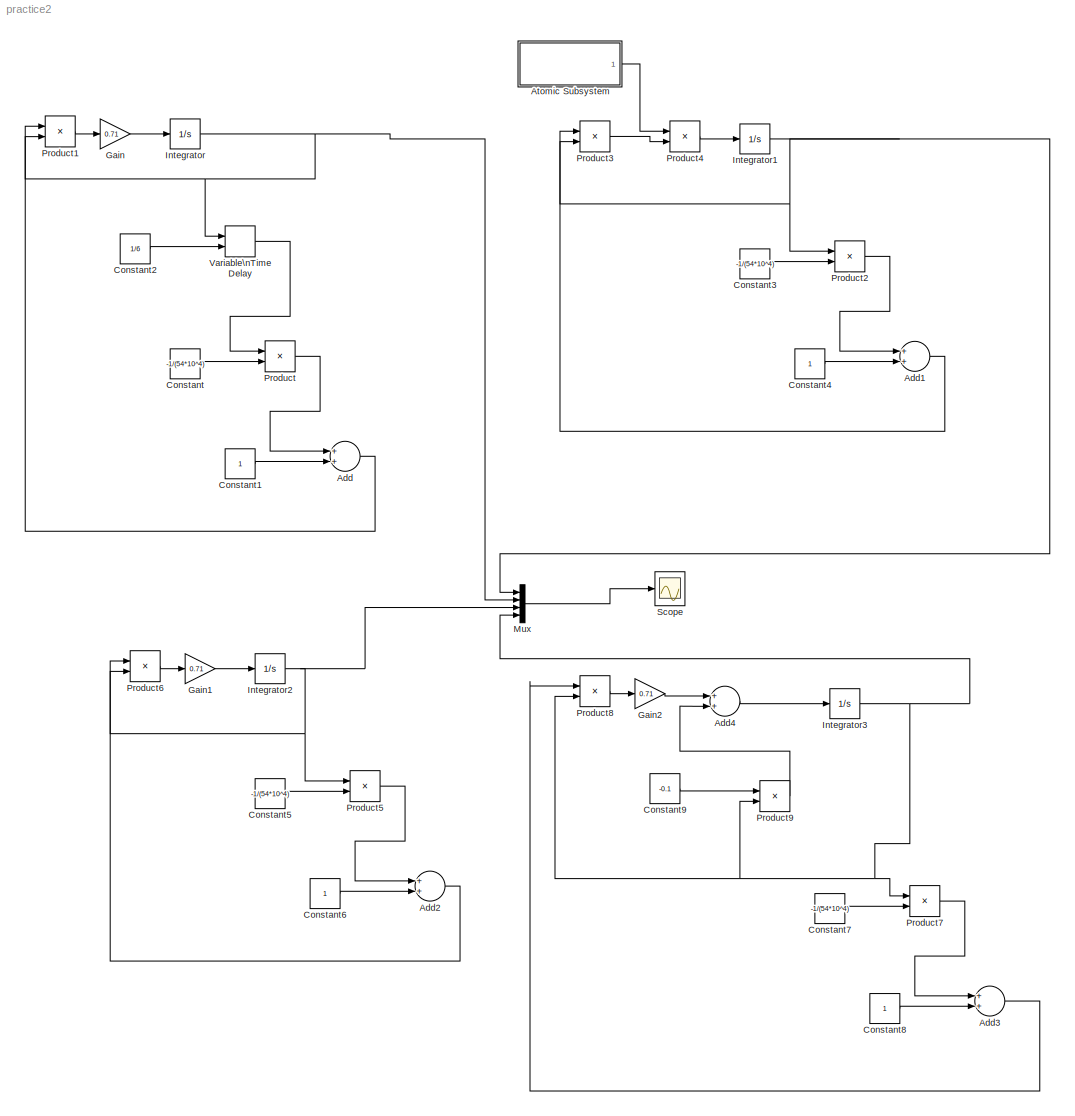
MODEL practice2
KIND model
BLOCK [Sum] Add
  InputSameDT = off
  OutDataTypeStr = Inherit: Inherit via internal rule
  Ports = [2, 1]
  SID = 1
  SaturateOnIntegerOverflow = off
BLOCK [Sum] Add1
  InputSameDT = off
  OutDataTypeStr = Inherit: Inherit via internal rule
  Ports = [2, 1]
  SID = 33
  SaturateOnIntegerOverflow = off
BLOCK [Sum] Add2
  InputSameDT = off
  OutDataTypeStr = Inherit: Inherit via internal rule
  Ports = [2, 1]
  SID = 51
  SaturateOnIntegerOverflow = off
BLOCK [Sum] Add3
  InputSameDT = off
  OutDataTypeStr = Inherit: Inherit via internal rule
  Ports = [2, 1]
  SID = 52
  SaturateOnIntegerOverflow = off
BLOCK [Sum] Add4
  InputSameDT = off
  OutDataTypeStr = Inherit: Inherit via internal rule
  Ports = [2, 1]
  SID = 53
  SaturateOnIntegerOverflow = off
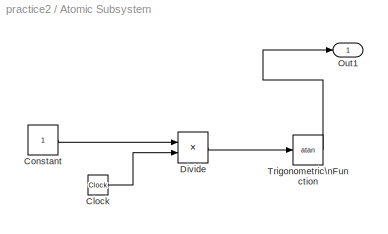
BLOCK [SubSystem] Atomic Subsystem
  FunctionWithSeparateData = off
  MaskHideContents = off
  MinAlgLoopOccurrences = off
  Opaque = off
  Ports = [0, 1]
  PropExecContextOutsideSubsystem = off
  RTWSystemCode = Auto
  RequestExecContextInheritance = off
  SID = 41
  TreatAsAtomicUnit = on
BLOCK [Clock] Atomic Subsystem/Clock
  SID = 44
BLOCK [Constant] Atomic Subsystem/Constant
  SID = 46
BLOCK [Product] Atomic Subsystem/Divide
  InputSameDT = off
  Inputs = */
  OutDataTypeStr = Inherit: Inherit via internal rule
  Ports = [2, 1]
  RndMeth = Floor
  SID = 45
  SaturateOnIntegerOverflow = off
BLOCK [Outport] Atomic Subsystem/Out1
  IconDisplay = Port number
  SID = 43
BLOCK [Trigonometry] Atomic Subsystem/Trigonometric\nFunction
  Operator = atan
  Ports = [1, 1]
  SID = 47
BLOCK [Constant] Constant
  SID = 2
  Value = -1/(54*10^4)
BLOCK [Constant] Constant1
  SID = 3
BLOCK [Constant] Constant2
  SID = 11
  Value = 1/6
BLOCK [Constant] Constant3
  SID = 34
  Value = -1/(54*10^4)
BLOCK [Constant] Constant4
  SID = 35
BLOCK [Constant] Constant5
  SID = 54
  Value = -1/(54*10^4)
BLOCK [Constant] Constant6
  SID = 55
BLOCK [Constant] Constant7
  SID = 56
  Value = -1/(54*10^4)
BLOCK [Constant] Constant8
  SID = 57
BLOCK [Constant] Constant9
  SID = 58
  Value = -0.1
BLOCK [Gain] Gain
  Gain = 0.71
  OutDataTypeStr = Inherit: Inherit via internal rule
  ParamDataTypeStr = Inherit: Inherit via internal rule
  SID = 4
  SaturateOnIntegerOverflow = off
BLOCK [Gain] Gain1
  Gain = 0.71
  OutDataTypeStr = Inherit: Inherit via internal rule
  ParamDataTypeStr = Inherit: Inherit via internal rule
  SID = 59
  SaturateOnIntegerOverflow = off
BLOCK [Gain] Gain2
  Gain = 0.71
  OutDataTypeStr = Inherit: Inherit via internal rule
  ParamDataTypeStr = Inherit: Inherit via internal rule
  SID = 60
  SaturateOnIntegerOverflow = off
BLOCK [Integrator] Integrator
  InitialCondition = (1/4)*54*10^4
  Ports = [1, 1]
  SID = 5
BLOCK [Integrator] Integrator1
  InitialCondition = (1/4)*54*10^4
  Ports = [1, 1]
  SID = 37
BLOCK [Integrator] Integrator2
  InitialCondition = (1/4)*54*10^4
  Ports = [1, 1]
  SID = 61
BLOCK [Integrator] Integrator3
  InitialCondition = (1/4)*54*10^4
  Ports = [1, 1]
  SID = 62
BLOCK [Mux] Mux
  DisplayOption = bar
  Ports = [4, 1]
  SID = 49
BLOCK [Product] Product
  InputSameDT = off
  OutDataTypeStr = Inherit: Inherit via internal rule
  Ports = [2, 1]
  SID = 6
  SaturateOnIntegerOverflow = off
BLOCK [Product] Product1
  InputSameDT = off
  OutDataTypeStr = Inherit: Inherit via internal rule
  Ports = [2, 1]
  SID = 7
  SaturateOnIntegerOverflow = off
BLOCK [Product] Product2
  InputSameDT = off
  OutDataTypeStr = Inherit: Inherit via internal rule
  Ports = [2, 1]
  SID = 38
  SaturateOnIntegerOverflow = off
BLOCK [Product] Product3
  InputSameDT = off
  OutDataTypeStr = Inherit: Inherit via internal rule
  Ports = [2, 1]
  SID = 39
  SaturateOnIntegerOverflow = off
BLOCK [Product] Product4
  InputSameDT = off
  OutDataTypeStr = Inherit: Inherit via internal rule
  Ports = [2, 1]
  SID = 48
  SaturateOnIntegerOverflow = off
BLOCK [Product] Product5
  InputSameDT = off
  OutDataTypeStr = Inherit: Inherit via internal rule
  Ports = [2, 1]
  SID = 63
  SaturateOnIntegerOverflow = off
BLOCK [Product] Product6
  InputSameDT = off
  OutDataTypeStr = Inherit: Inherit via internal rule
  Ports = [2, 1]
  SID = 64
  SaturateOnIntegerOverflow = off
BLOCK [Product] Product7
  InputSameDT = off
  OutDataTypeStr = Inherit: Inherit via internal rule
  Ports = [2, 1]
  SID = 65
  SaturateOnIntegerOverflow = off
BLOCK [Product] Product8
  InputSameDT = off
  OutDataTypeStr = Inherit: Inherit via internal rule
  Ports = [2, 1]
  SID = 66
  SaturateOnIntegerOverflow = off
BLOCK [Product] Product9
  InputSameDT = off
  OutDataTypeStr = Inherit: Inherit via internal rule
  Ports = [2, 1]
  SID = 67
  SaturateOnIntegerOverflow = off
BLOCK [Scope] Scope
  DataFormat = StructureWithTime
  Floating = off
  NumInputPorts = 1
  Ports = [1]
  SID = 8
  SampleTime = 0
  SaveToWorkspace = on
  ShowLegends = off
  ZoomMode = yonly
BLOCK [VariableTransportDelay] Variable\nTime Delay
  MaximumDelay = 10
  Ports = [2, 1]
  SID = 10
LINE Add1:1 -> Product3:1
LINE Add2:1 -> Product6:1
LINE Add3:1 -> Product8:1
LINE Add4:1 -> Integrator3:1
LINE Add:1 -> Product1:1
LINE Atomic Subsystem/Clock:1 -> Atomic Subsystem/Divide:2
LINE Atomic Subsystem/Constant:1 -> Atomic Subsystem/Divide:1
LINE Atomic Subsystem/Divide:1 -> Atomic Subsystem/Trigonometric\nFunction:1
LINE Atomic Subsystem/Trigonometric\nFunction:1 -> Atomic Subsystem/Out1:1
LINE Atomic Subsystem:1 -> Product4:1
LINE Constant1:1 -> Add:2
LINE Constant2:1 -> Variable\nTime Delay:2
LINE Constant3:1 -> Product2:2
LINE Constant4:1 -> Add1:2
LINE Constant5:1 -> Product5:2
LINE Constant6:1 -> Add2:2
LINE Constant7:1 -> Product7:2
LINE Constant8:1 -> Add3:2
LINE Constant9:1 -> Product9:1
LINE Constant:1 -> Product:2
LINE Gain1:1 -> Integrator2:1
LINE Gain2:1 -> Add4:1
LINE Gain:1 -> Integrator:1
NET Integrator1:1 -> Mux:1, Product2:1, Product3:2
NET Integrator2:1 -> Mux:3, Product5:1, Product6:2
NET Integrator3:1 -> Mux:4, Product7:1, Product8:2, Product9:2
NET Integrator:1 -> Mux:2, Product1:2, Variable\nTime Delay:1
LINE Mux:1 -> Scope:1
LINE Product1:1 -> Gain:1
LINE Product2:1 -> Add1:1
LINE Product3:1 -> Product4:2
LINE Product4:1 -> Integrator1:1
LINE Product5:1 -> Add2:1
LINE Product6:1 -> Gain1:1
LINE Product7:1 -> Add3:1
LINE Product8:1 -> Gain2:1
LINE Product9:1 -> Add4:2
LINE Product:1 -> Add:1
LINE Variable\nTime Delay:1 -> Product:1
note: NET lines group one-source signal fan-out (src -> all destinations, sorted); 1:1 wires keep LINE
